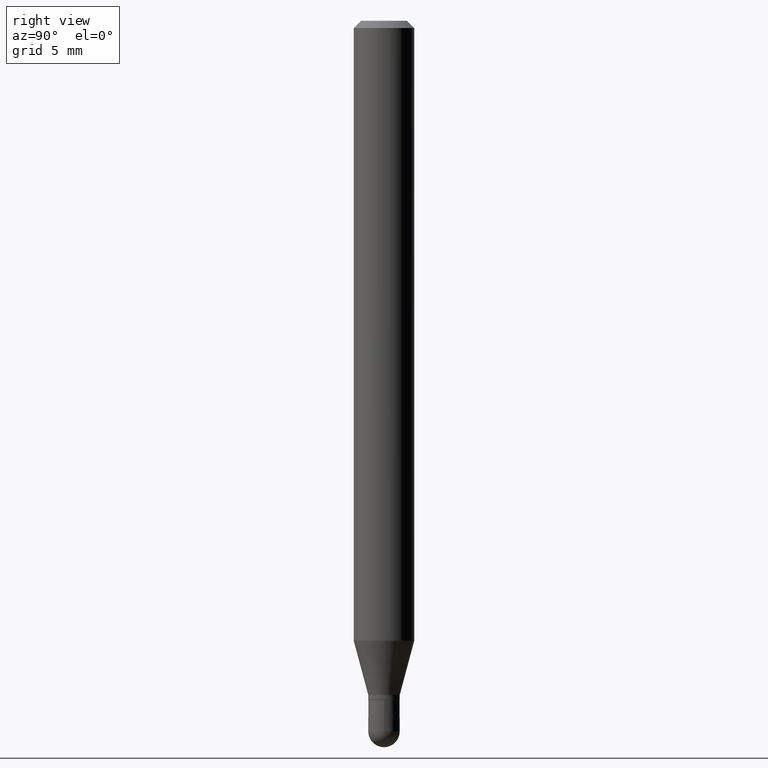
[diagram: clean part render]
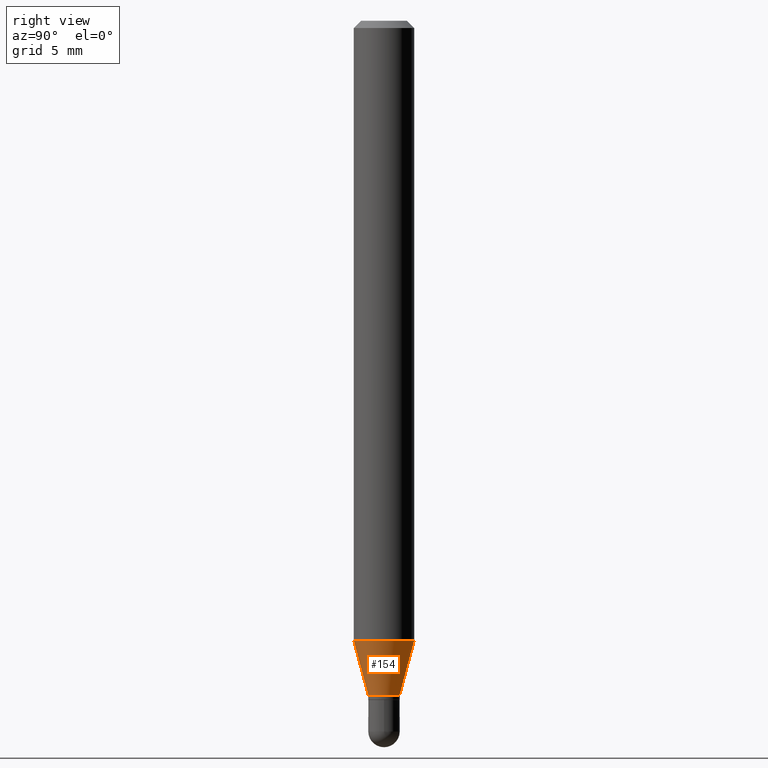
[diagram: same view with one face highlighted and labeled with its STEP entity id]
A machine part, right view. The second image highlights one B-rep face of the part: STEP entity #154.
In plain terms, the highlighted conical surface has half-angle 15 deg.
Its self-contained STEP definition (entity closure, byte-faithful):
#24 = ORIENTED_EDGE ( 'NONE', *, *, #161, .F. ) ;
#35 = CARTESIAN_POINT ( 'NONE',  ( 3.130237711891426451E-29, -4.469311292677210707E-15, -1.280038475772935058 ) ) ;
#45 = VERTEX_POINT ( 'NONE', #146 ) ;
#78 = EDGE_CURVE ( 'NONE', #140, #92, #470, .T. ) ;
#92 = VERTEX_POINT ( 'NONE', #107 ) ;
#107 = CARTESIAN_POINT ( 'NONE',  ( -4.364351673553605094E-16, -0.06250000000000451028, -1.280038475772934836 ) ) ;
#125 = CARTESIAN_POINT ( 'NONE',  ( 4.440892098500935790E-16, 0.06249999999999548972, -1.280038475772935502 ) ) ;
#140 = VERTEX_POINT ( 'NONE', #324 ) ;
#145 = ORIENTED_EDGE ( 'NONE', *, *, #157, .T. ) ;
#146 = CARTESIAN_POINT ( 'NONE',  ( 3.375077994860809709E-16, 0.03249999999999533817, -1.392000000000000348 ) ) ;
#154 = ADVANCED_FACE ( 'NONE', ( #409 ), #428, .T. ) ;
#157 = EDGE_CURVE ( 'NONE', #45, #293, #443, .T. ) ;
#160 = DIRECTION ( 'NONE',  ( 1.839019923739600315E-15, 0.2588190451025249583, 0.9659258262890670910 ) ) ;
#161 = EDGE_CURVE ( 'NONE', #92, #293, #198, .T. ) ;
#170 = CARTESIAN_POINT ( 'NONE',  ( 3.404031189235755546E-29, -4.860229936174407704E-15, -1.392000000000000348 ) ) ;
#198 = CIRCLE ( 'NONE', #264, 0.06250000000000000000 ) ;
#205 = AXIS2_PLACEMENT_3D ( 'NONE', #170, #334, #416 ) ;
#243 = EDGE_LOOP ( 'NONE', ( #247, #145, #24, #440 ) ) ;
#247 = ORIENTED_EDGE ( 'NONE', *, *, #476, .T. ) ;
#264 = AXIS2_PLACEMENT_3D ( 'NONE', #35, #330, #284 ) ;
#273 = VECTOR ( 'NONE', #438, 39.37007874015748143 ) ;
#284 = DIRECTION ( 'NONE',  ( -6.982962677686265922E-15, -1.000000000000000000, 4.370956789862821150E-15 ) ) ;
#293 = VERTEX_POINT ( 'NONE', #125 ) ;
#321 = AXIS2_PLACEMENT_3D ( 'NONE', #363, #405, #448 ) ;
#324 = CARTESIAN_POINT ( 'NONE',  ( -2.269462870247710093E-16, -0.03250000000000505956, -1.392000000000000348 ) ) ;
#330 = DIRECTION ( 'NONE',  ( -2.445424704910742757E-29, 3.491544494378166105E-15, 1.000000000000000000 ) ) ;
#334 = DIRECTION ( 'NONE',  ( -2.445424704910742757E-29, 3.491544494378166105E-15, 1.000000000000000000 ) ) ;
#363 = CARTESIAN_POINT ( 'NONE',  ( 3.404031189235755546E-29, -4.860229936174407704E-15, -1.392000000000000348 ) ) ;
#405 = DIRECTION ( 'NONE',  ( -2.445424704910742757E-29, 3.491544494378166105E-15, 1.000000000000000000 ) ) ;
#409 = FACE_OUTER_BOUND ( 'NONE', #243, .T. ) ;
#416 = DIRECTION ( 'NONE',  ( -6.982962677686265133E-15, -1.000000000000000000, 0.000000000000000000 ) ) ;
#428 = CONICAL_SURFACE ( 'NONE', #321, 0.03250000000000020234, 0.2617993877991502960 ) ;
#429 = CIRCLE ( 'NONE', #205, 0.03250000000000020234 ) ;
#438 = DIRECTION ( 'NONE',  ( -1.807323732225330139E-15, -0.2588190451025181860, 0.9659258262890689783 ) ) ;
#440 = ORIENTED_EDGE ( 'NONE', *, *, #78, .F. ) ;
#443 = LINE ( 'NONE', #479, #445 ) ;
#445 = VECTOR ( 'NONE', #160, 39.37007874015748143 ) ;
#448 = DIRECTION ( 'NONE',  ( -6.982962677686265133E-15, -1.000000000000000000, 0.000000000000000000 ) ) ;
#468 = CARTESIAN_POINT ( 'NONE',  ( -2.269462870247710093E-16, -0.03250000000000505956, -1.392000000000000348 ) ) ;
#470 = LINE ( 'NONE', #468, #273 ) ;
#476 = EDGE_CURVE ( 'NONE', #140, #45, #429, .T. ) ;
#479 = CARTESIAN_POINT ( 'NONE',  ( 2.309263891220679684E-16, 0.03249999999999533817, -1.392000000000000348 ) ) ;